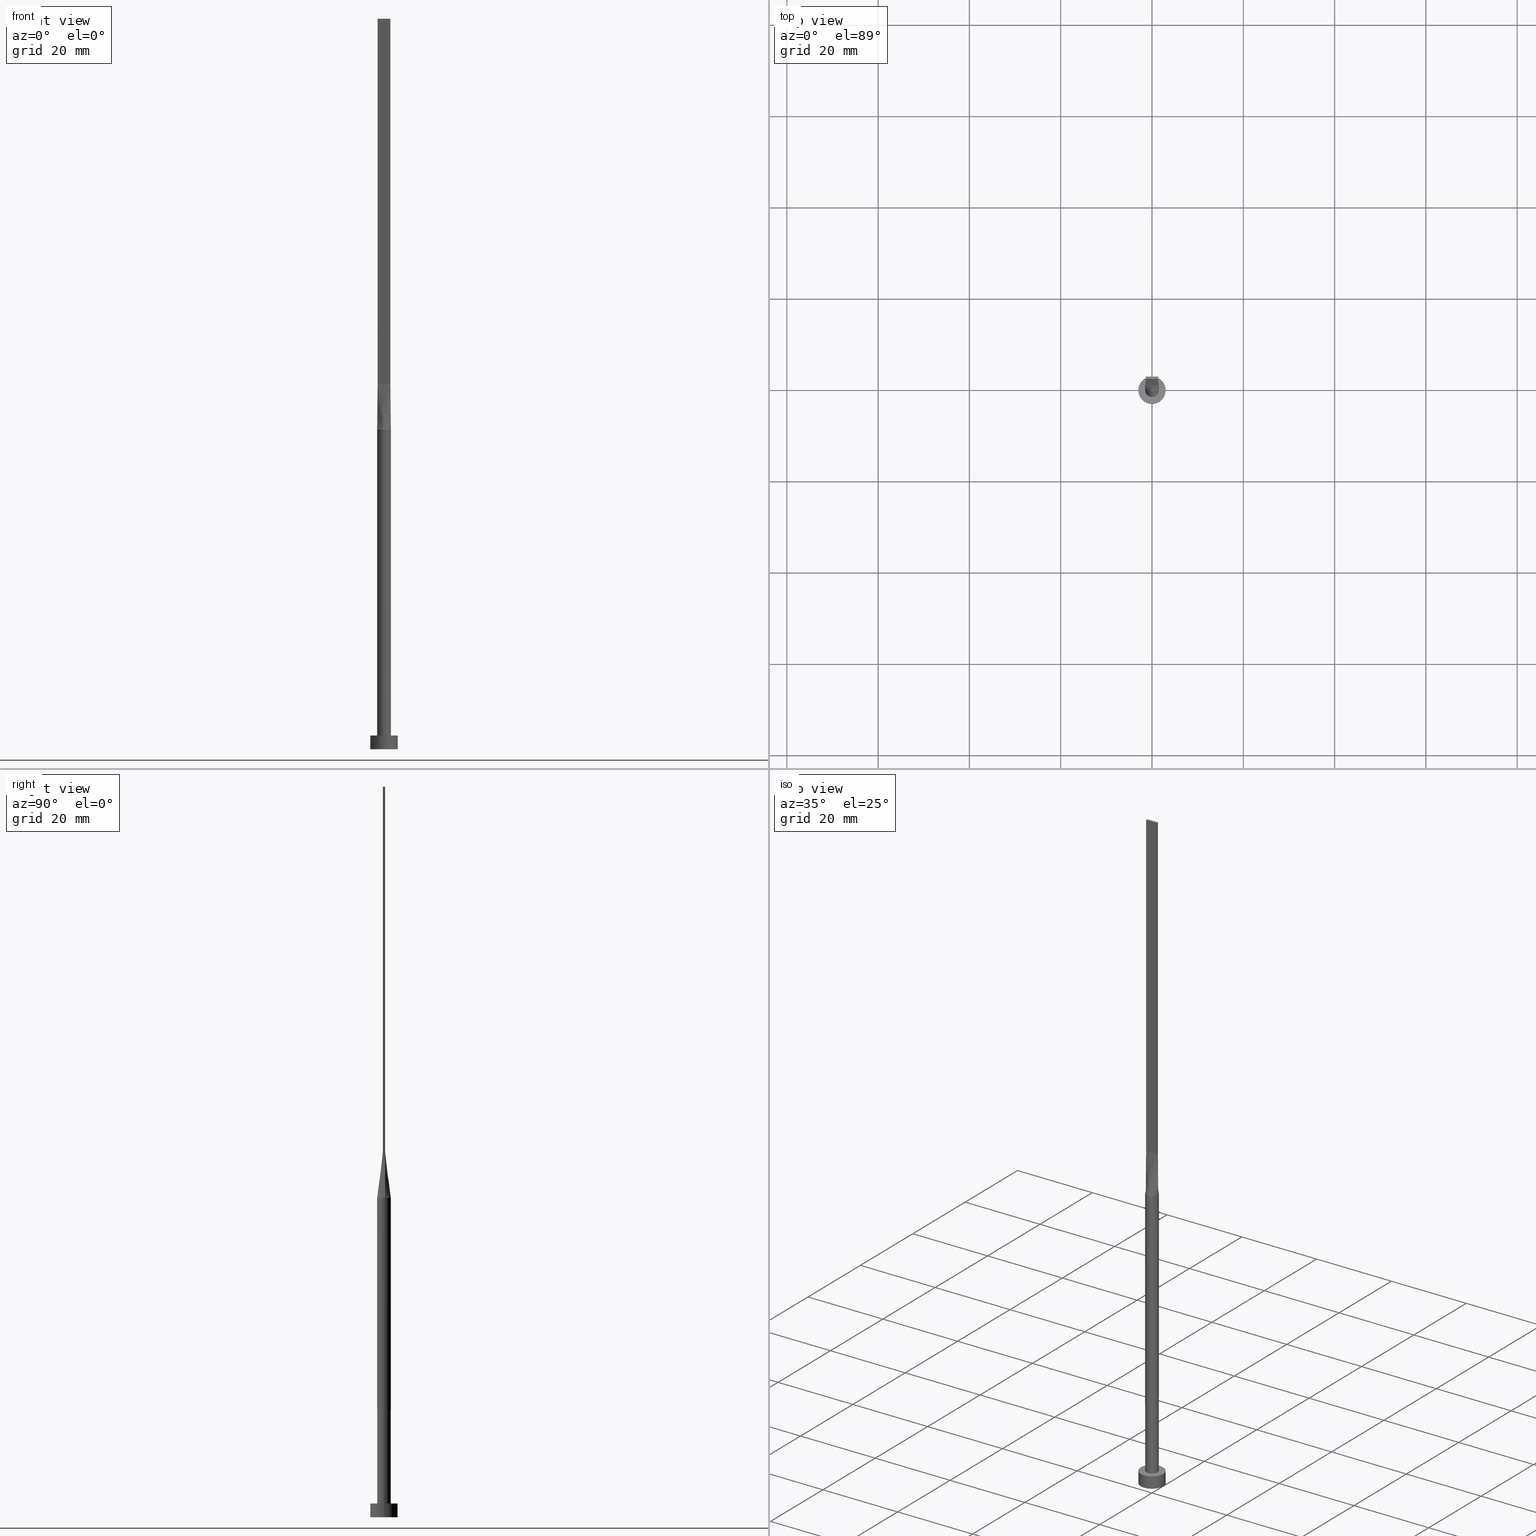
[diagram: canonical four-view strip — front | top / right | iso, engineering-drawing reading convention]
A machine part, canonical four-view strip (front | top / right | iso — engineering-drawing reading convention). The complete STEP part file that produces these views, byte-faithful:
ISO-10303-21;
HEADER;
FILE_DESCRIPTION (( 'STEP AP203' ),
    '1' );
FILE_NAME ('3741.STEP',
    '2026-02-12T09:00:59',
    ( '' ),
    ( '' ),
    'SwSTEP 2.0',
    'SolidWorks 2019',
    '' );
FILE_SCHEMA (( 'CONFIG_CONTROL_DESIGN' ));
ENDSEC;

DATA;
#1 = ORIENTED_EDGE ( 'NONE', *, *, #429, .T. ) ;
#2 = LINE ( 'NONE', #188, #316 ) ;
#3 = CIRCLE ( 'NONE', #363, 1.500000000000000222 ) ;
#4 = AXIS2_PLACEMENT_3D ( 'NONE', #34, #219, #395 ) ;
#5 = SECURITY_CLASSIFICATION ( '', '', #355 ) ;
#6 = DATE_AND_TIME ( #453, #443 ) ;
#7 = ADVANCED_FACE ( 'NONE', ( #457 ), #102, .F. ) ;
#8 = CARTESIAN_POINT ( 'NONE',  ( 1.399999999999999911, 0.1666666666666668239, 79.99999999999998579 ) ) ;
#9 = PLANE ( 'NONE',  #536 ) ;
#10 = CARTESIAN_POINT ( 'NONE',  ( -1.166666666666666519, 0.2500000000000002220, 79.99999999999998579 ) ) ;
#11 = VECTOR ( 'NONE', #522, 999.9999999999998863 ) ;
#12 = CARTESIAN_POINT ( 'NONE',  ( -1.499909062348296462, -1.026848616785427865E-15, 70.00000000000000000 ) ) ;
#13 = CC_DESIGN_PERSON_AND_ORGANIZATION_ASSIGNMENT ( #362, #497, ( #90 ) ) ;
#14 = ORIENTED_EDGE ( 'NONE', *, *, #112, .F. ) ;
#15 = LINE ( 'NONE', #237, #391 ) ;
#16 = CARTESIAN_POINT ( 'NONE',  ( 1.399999999999999911, -0.2499999999999997780, 160.0000000000000000 ) ) ;
#17 = CARTESIAN_POINT ( 'NONE',  ( 0.000000000000000000, 0.000000000000000000, 70.00000000000000000 ) ) ;
#18 = DIRECTION ( 'NONE',  ( 1.000000000000000000, 0.000000000000000000, 0.000000000000000000 ) ) ;
#19 = EDGE_LOOP ( 'NONE', ( #464, #1 ) ) ;
#20 = EDGE_LOOP ( 'NONE', ( #111, #153 ) ) ;
#21 = CIRCLE ( 'NONE', #57, 3.000000000000000444 ) ;
#22 = CARTESIAN_POINT ( 'NONE',  ( 1.166666666666666519, -0.2499999999999997780, 79.99999999999998579 ) ) ;
#23 = CARTESIAN_POINT ( 'NONE',  ( 1.416287091352355976, 0.5163978007200227260, 70.00000000000001421 ) ) ;
#24 = DIRECTION ( 'NONE',  ( 0.000000000000000000, 0.000000000000000000, 1.000000000000000000 ) ) ;
#25 = PLANE ( 'NONE',  #233 ) ;
#26 = CARTESIAN_POINT ( 'NONE',  ( -1.476780214353118348, -0.2637106662004926605, 70.00000000000000000 ) ) ;
#27 = ORIENTED_EDGE ( 'NONE', *, *, #180, .T. ) ;
#28 = CARTESIAN_POINT ( 'NONE',  ( -1.476641363262723328, -0.2636859577254855869, 70.00000000000000000 ) ) ;
#29 = DIRECTION ( 'NONE',  ( -1.000000000000000000, 0.000000000000000000, 0.000000000000000000 ) ) ;
#30 = CARTESIAN_POINT ( 'NONE',  ( 0.000000000000000000, 0.000000000000000000, 70.00000000000000000 ) ) ;
#31 = VECTOR ( 'NONE', #431, 999.9999999999998863 ) ;
#32 = CARTESIAN_POINT ( 'NONE',  ( -0.9436169880431074519, -1.179536671679307647, 70.00000000000000000 ) ) ;
#33 = ORIENTED_EDGE ( 'NONE', *, *, #120, .F. ) ;
#34 = CARTESIAN_POINT ( 'NONE',  ( 0.000000000000000000, 0.000000000000000000, 70.00000000000000000 ) ) ;
#35 = DIRECTION ( 'NONE',  ( 1.000000000000000000, 0.000000000000000000, 0.000000000000000000 ) ) ;
#36 = ORIENTED_EDGE ( 'NONE', *, *, #158, .F. ) ;
#37 = CARTESIAN_POINT ( 'NONE',  ( -1.476774769252511055, 0.2637095436881764510, 70.00000000000000000 ) ) ;
#38 = CARTESIAN_POINT ( 'NONE',  ( 0.000000000000000000, 0.000000000000000000, 3.000000000000000000 ) ) ;
#39 = APPROVAL_DATE_TIME ( #268, #389 ) ;
#40 = B_SPLINE_SURFACE_WITH_KNOTS ( 'NONE', 3, 1, ( 
 ( #341, #175 ),
 ( #259, #207 ),
 ( #71, #427 ),
 ( #558, #161 ),
 ( #306, #256 ),
 ( #28, #520 ) ),
 .UNSPECIFIED., .F., .F., .F.,
 ( 4, 2, 4 ),
 ( 2, 2 ),
 ( 0.000000000000000000, 0.5000000000000000000, 1.000000000000000000 ),
 ( 0.000000000000000000, 1.000000000000000000 ),
 .UNSPECIFIED. ) ;
#41 = VECTOR ( 'NONE', #455, 1000.000000000000000 ) ;
#42 = DIRECTION ( 'NONE',  ( -1.000000000000000000, 0.000000000000000000, 0.000000000000000000 ) ) ;
#43 = PERSON_AND_ORGANIZATION ( #89, #145 ) ;
#44 = CARTESIAN_POINT ( 'NONE',  ( -1.399999999999999911, 0.2500000000000002220, 160.0000000000000000 ) ) ;
#45 = ORIENTED_EDGE ( 'NONE', *, *, #85, .F. ) ;
#46 = CARTESIAN_POINT ( 'NONE',  ( -1.399999999999999911, -0.2499999999999996392, 160.0000000000000000 ) ) ;
#47 = CALENDAR_DATE ( 2026, 12, 2 ) ;
#48 = CARTESIAN_POINT ( 'NONE',  ( 0.000000000000000000, 0.000000000000000000, 70.00000000000000000 ) ) ;
#49 = PERSON_AND_ORGANIZATION ( #89, #145 ) ;
#50 = VERTEX_POINT ( 'NONE', #291 ) ;
#51 = EDGE_CURVE ( 'NONE', #377, #63, #60, .T. ) ;
#52 = CARTESIAN_POINT ( 'NONE',  ( 1.399999999999999911, -0.2499999999999997780, 80.00000000000000000 ) ) ;
#53 = DIRECTION ( 'NONE',  ( 0.000000000000000000, 0.000000000000000000, 1.000000000000000000 ) ) ;
#54 = CC_DESIGN_PERSON_AND_ORGANIZATION_ASSIGNMENT ( #96, #366, ( #90 ) ) ;
#55 = EDGE_CURVE ( 'NONE', #327, #50, #97, .T. ) ;
#56 = CARTESIAN_POINT ( 'NONE',  ( -1.399999999999999911, 0.2500000000000002220, 160.0000000000000000 ) ) ;
#57 = AXIS2_PLACEMENT_3D ( 'NONE', #441, #364, #493 ) ;
#58 = ORIENTED_EDGE ( 'NONE', *, *, #470, .F. ) ;
#59 = CARTESIAN_POINT ( 'NONE',  ( -0.4666666666666662300, 0.2500000000000002220, 79.99999999999998579 ) ) ;
#60 = LINE ( 'NONE', #244, #489 ) ;
#61 = ORIENTED_EDGE ( 'NONE', *, *, #186, .F. ) ;
#62 = DIRECTION ( 'NONE',  ( -0.000000000000000000, -0.000000000000000000, -1.000000000000000000 ) ) ;
#63 = VERTEX_POINT ( 'NONE', #412 ) ;
#64 = DIRECTION ( 'NONE',  ( 1.000000000000000000, 0.000000000000000000, 0.000000000000000000 ) ) ;
#65 = ORIENTED_EDGE ( 'NONE', *, *, #289, .T. ) ;
#66 = CC_DESIGN_APPROVAL ( #389, ( #90 ) ) ;
#67 = EDGE_CURVE ( 'NONE', #460, #50, #294, .T. ) ;
#68 = CARTESIAN_POINT ( 'NONE',  ( 0.4666666666666656194, -0.2499999999999996669, 79.99999999999998579 ) ) ;
#69 = CARTESIAN_POINT ( 'NONE',  ( 3.000000000000000444, 3.673940397442060361E-16, 3.000000000000000000 ) ) ;
#70 = ORIENTED_EDGE ( 'NONE', *, *, #367, .F. ) ;
#71 = CARTESIAN_POINT ( 'NONE',  ( -1.499818124696592481, 0.08857969085285440081, 70.00000000000000000 ) ) ;
#72 = DIRECTION ( 'NONE',  ( 0.000000000000000000, 0.000000000000000000, 1.000000000000000000 ) ) ;
#73 = CARTESIAN_POINT ( 'NONE',  ( -0.4178861784692550208, 1.454504042781961326, 70.00000000000001421 ) ) ;
#74 = CARTESIAN_POINT ( 'NONE',  ( 1.399999999999999911, -0.2499999999999997780, 80.00000000000000000 ) ) ;
#75 = CARTESIAN_POINT ( 'NONE',  ( -1.416287091352355976, 0.5163978007200225040, 70.00000000000001421 ) ) ;
#76 = AXIS2_PLACEMENT_3D ( 'NONE', #48, #234, #372 ) ;
#77 = CARTESIAN_POINT ( 'NONE',  ( -1.399999999999999911, 0.2500000000000002220, 80.00000000000000000 ) ) ;
#78 = ORIENTED_EDGE ( 'NONE', *, *, #487, .T. ) ;
#79 = CARTESIAN_POINT ( 'NONE',  ( -1.193588737715979731, -0.9257784320005619794, 70.00000000000000000 ) ) ;
#80 = CARTESIAN_POINT ( 'NONE',  ( 0.9333333333333329040, -0.2499999999999997224, 79.99999999999998579 ) ) ;
#81 = B_SPLINE_SURFACE_WITH_KNOTS ( 'NONE', 3, 1, ( 
 ( #356, #402 ),
 ( #531, #312 ),
 ( #93, #271 ),
 ( #581, #231 ),
 ( #183, #84 ),
 ( #403, #266 ),
 ( #226, #401 ),
 ( #358, #181 ),
 ( #533, #135 ),
 ( #314, #488 ),
 ( #88, #279 ),
 ( #329, #59 ),
 ( #369, #411 ),
 ( #368, #539 ),
 ( #285, #195 ),
 ( #506, #10 ),
 ( #456, #192 ),
 ( #151, #376 ) ),
 .UNSPECIFIED., .F., .F., .F.,
 ( 4, 2, 2, 2, 2, 2, 2, 2, 4 ),
 ( 2, 2 ),
 ( 0.000000000000000000, 0.1249999999999999167, 0.2499999999999998335, 0.3749999999999998335, 0.4999999999999998890, 0.6249999999999998890, 0.7499999999999998890, 0.8750000000000000000, 1.000000000000000000 ),
 ( 0.000000000000000000, 1.000000000000000000 ),
 .UNSPECIFIED. ) ;
#82 = CALENDAR_DATE ( 2026, 12, 2 ) ;
#83 = VERTEX_POINT ( 'NONE', #163 ) ;
#84 = CARTESIAN_POINT ( 'NONE',  ( 0.8166666666666673180, 0.2500000000000002220, 79.99999999999998579 ) ) ;
#85 = EDGE_CURVE ( 'NONE', #335, #63, #205, .T. ) ;
#86 = SHAPE_DEFINITION_REPRESENTATION ( #479, #277 ) ;
#87 = VECTOR ( 'NONE', #62, 1000.000000000000000 ) ;
#88 = CARTESIAN_POINT ( 'NONE',  ( -0.4178861784692550208, 1.454504042781961326, 70.00000000000001421 ) ) ;
#89 = PERSON ( 'NEUR�EN�', 'NEUR�EN�', 'NEUR�EN�', ('NEUR�EN�'), ('NEUR�EN�'), ('NEUR�EN�') ) ;
#90 = PRODUCT_DEFINITION_FORMATION_WITH_SPECIFIED_SOURCE ( 'LIBOVOLN�', '', #311, .NOT_KNOWN. ) ;
#91 = ORIENTED_EDGE ( 'NONE', *, *, #169, .F. ) ;
#92 = APPROVAL_DATE_TIME ( #6, #407 ) ;
#93 = CARTESIAN_POINT ( 'NONE',  ( 1.416287091352355976, 0.5163978007200227260, 70.00000000000001421 ) ) ;
#94 = PERSON_AND_ORGANIZATION_ROLE ( 'classification_officer' ) ;
#95 = CARTESIAN_POINT ( 'NONE',  ( 1.399999999999999911, 0.08333333333333346749, 79.99999999999998579 ) ) ;
#96 = PERSON_AND_ORGANIZATION ( #89, #145 ) ;
#97 = CIRCLE ( 'NONE', #238, 3.000000000000000444 ) ;
#98 = CARTESIAN_POINT ( 'NONE',  ( 1.500000000000000222, 1.836970198721030181E-16, 70.00000000000000000 ) ) ;
#99 = EDGE_CURVE ( 'NONE', #383, #557, #281, .T. ) ;
#100 = CARTESIAN_POINT ( 'NONE',  ( 0.000000000000000000, 0.000000000000000000, 0.000000000000000000 ) ) ;
#101 = FACE_OUTER_BOUND ( 'NONE', #410, .T. ) ;
#102 = PLANE ( 'NONE',  #380 ) ;
#103 = EDGE_LOOP ( 'NONE', ( #274, #150, #568, #267 ) ) ;
#104 = UNCERTAINTY_MEASURE_WITH_UNIT (LENGTH_MEASURE( 1.000000000000000082E-05 ), #162, 'distance_accuracy_value', 'NONE');
#105 = CARTESIAN_POINT ( 'NONE',  ( 1.399999999999999911, -0.08333333333333318993, 79.99999999999998579 ) ) ;
#106 = CIRCLE ( 'NONE', #144, 1.500000000000000222 ) ;
#107 = ORIENTED_EDGE ( 'NONE', *, *, #398, .F. ) ;
#108 = LINE ( 'NONE', #69, #154 ) ;
#109 = CARTESIAN_POINT ( 'NONE',  ( -1.500000000000000222, 0.000000000000000000, 70.00000000000000000 ) ) ;
#110 = EDGE_LOOP ( 'NONE', ( #350, #360, #278, #548 ) ) ;
#111 = ORIENTED_EDGE ( 'NONE', *, *, #180, .F. ) ;
#112 = EDGE_CURVE ( 'NONE', #445, #471, #424, .T. ) ;
#113 = DIRECTION ( 'NONE',  ( 0.000000000000000000, 0.000000000000000000, 1.000000000000000000 ) ) ;
#114 = DIRECTION ( 'NONE',  ( -0.000000000000000000, -0.000000000000000000, -1.000000000000000000 ) ) ;
#115 = VERTEX_POINT ( 'NONE', #12 ) ;
#116 = CIRCLE ( 'NONE', #248, 1.500000000000000222 ) ;
#117 = EDGE_CURVE ( 'NONE', #63, #185, #340, .T. ) ;
#118 = CARTESIAN_POINT ( 'NONE',  ( -0.1166666666666678343, -0.2499999999999996669, 80.00000000000000000 ) ) ;
#119 = PERSON_AND_ORGANIZATION ( #89, #145 ) ;
#120 = EDGE_CURVE ( 'NONE', #115, #557, #334, .T. ) ;
#121 = CARTESIAN_POINT ( 'NONE',  ( -0.9436169880431073409, 1.179536671679307647, 70.00000000000001421 ) ) ;
#122 = EDGE_CURVE ( 'NONE', #505, #335, #512, .T. ) ;
#123 = CARTESIAN_POINT ( 'NONE',  ( 0.2093118330951404815, -1.500000000000000444, 70.00000000000000000 ) ) ;
#124 = CARTESIAN_POINT ( 'NONE',  ( 0.000000000000000000, 0.000000000000000000, 3.000000000000000000 ) ) ;
#125 = CARTESIAN_POINT ( 'NONE',  ( 1.438320681631361619, 0.2568429788627433208, 75.00000000000001421 ) ) ;
#126 = ORIENTED_EDGE ( 'NONE', *, *, #486, .F. ) ;
#127 = CARTESIAN_POINT ( 'NONE',  ( 0.000000000000000000, 0.000000000000000000, 3.000000000000000000 ) ) ;
#128 = VECTOR ( 'NONE', #114, 1000.000000000000000 ) ;
#129 = LOCAL_TIME ( 10, 0, 59.00000000000000000, #449 ) ;
#130 = CARTESIAN_POINT ( 'NONE',  ( -0.5833333333333343695, -0.2499999999999996669, 79.99999999999998579 ) ) ;
#131 = EDGE_LOOP ( 'NONE', ( #436, #78, #218, #33, #91, #36 ) ) ;
#132 = CARTESIAN_POINT ( 'NONE',  ( -1.455009719257779111, 0.3848231641531745795, 70.00000000000000000 ) ) ;
#133 = DIRECTION ( 'NONE',  ( -0.000000000000000000, 1.000000000000000000, -0.000000000000000000 ) ) ;
#134 = CALENDAR_DATE ( 2026, 12, 2 ) ;
#135 = CARTESIAN_POINT ( 'NONE',  ( 0.1166666666666669461, 0.2500000000000002220, 79.99999999999998579 ) ) ;
#136 = APPROVAL_STATUS ( 'not_yet_approved' ) ;
#137 = VECTOR ( 'NONE', #246, 999.9999999999998863 ) ;
#138 = CARTESIAN_POINT ( 'NONE',  ( 1.476765312825354837, 0.2637079867918904474, 70.00000000000000000 ) ) ;
#139 = CC_DESIGN_PERSON_AND_ORGANIZATION_ASSIGNMENT ( #119, #562, ( #311 ) ) ;
#140 = COORDINATED_UNIVERSAL_TIME_OFFSET ( 1, 0, .AHEAD. ) ;
#141 = DIRECTION ( 'NONE',  ( -0.000000000000000000, -0.000000000000000000, -1.000000000000000000 ) ) ;
#142 = APPROVAL_STATUS ( 'not_yet_approved' ) ;
#143 = CARTESIAN_POINT ( 'NONE',  ( 1.492092537551969578, 0.1771593817057089126, 70.00000000000000000 ) ) ;
#144 = AXIS2_PLACEMENT_3D ( 'NONE', #17, #282, #503 ) ;
#145 = ORGANIZATION ( 'NEUR�EN�', 'NEUR�EN�', '' ) ;
#146 = DIRECTION ( 'NONE',  ( 1.000000000000000000, 0.000000000000000000, 0.000000000000000000 ) ) ;
#147 = ORIENTED_EDGE ( 'NONE', *, *, #295, .F. ) ;
#148 = CARTESIAN_POINT ( 'NONE',  ( 3.000000000000000444, 3.673940397442060361E-16, 3.000000000000000000 ) ) ;
#149 = DIRECTION ( 'NONE',  ( -0.000000000000000000, -0.000000000000000000, -1.000000000000000000 ) ) ;
#150 = ORIENTED_EDGE ( 'NONE', *, *, #486, .T. ) ;
#151 = CARTESIAN_POINT ( 'NONE',  ( -1.476641363262723328, 0.2636859577254856424, 70.00000000000000000 ) ) ;
#152 = CARTESIAN_POINT ( 'NONE',  ( 0.000000000000000000, 0.000000000000000000, 3.000000000000000000 ) ) ;
#153 = ORIENTED_EDGE ( 'NONE', *, *, #99, .F. ) ;
#154 = VECTOR ( 'NONE', #336, 1000.000000000000000 ) ;
#155 = APPROVAL_ROLE ( '' ) ;
#156 = CARTESIAN_POINT ( 'NONE',  ( -1.438320681631361619, -0.2568429788627425991, 75.00000000000001421 ) ) ;
#157 = ORIENTED_EDGE ( 'NONE', *, *, #51, .T. ) ;
#158 = EDGE_CURVE ( 'NONE', #365, #505, #254, .T. ) ;
#159 = CARTESIAN_POINT ( 'NONE',  ( 0.7852726932053988307, 1.293660568283136358, 70.00000000000001421 ) ) ;
#160 = EDGE_LOOP ( 'NONE', ( #318, #107, #413, #197 ) ) ;
#161 = CARTESIAN_POINT ( 'NONE',  ( -1.399999999999999911, -0.08333333333333345361, 79.99999999999998579 ) ) ;
#162 =( LENGTH_UNIT ( ) NAMED_UNIT ( * ) SI_UNIT ( .MILLI., .METRE. ) );
#163 = CARTESIAN_POINT ( 'NONE',  ( -1.399999999999999911, 0.2500000000000002220, 160.0000000000000000 ) ) ;
#164 = EDGE_LOOP ( 'NONE', ( #206, #14, #517, #157 ) ) ;
#165 = PLANE ( 'NONE',  #260 ) ;
#166 = DIRECTION ( 'NONE',  ( 1.000000000000000000, 0.000000000000000000, 0.000000000000000000 ) ) ;
#167 = AXIS2_PLACEMENT_3D ( 'NONE', #223, #535, #399 ) ;
#168 =( GEOMETRIC_REPRESENTATION_CONTEXT ( 3 ) GLOBAL_UNCERTAINTY_ASSIGNED_CONTEXT ( ( #104 ) ) GLOBAL_UNIT_ASSIGNED_CONTEXT ( ( #162, #204, #381 ) ) REPRESENTATION_CONTEXT ( 'NONE', 'WORKASPACE' ) );
#169 = EDGE_CURVE ( 'NONE', #505, #115, #409, .T. ) ;
#170 = CARTESIAN_POINT ( 'NONE',  ( 1.476641363262723106, -0.2636859577254864750, 70.00000000000000000 ) ) ;
#171 = FACE_OUTER_BOUND ( 'NONE', #272, .T. ) ;
#172 = LINE ( 'NONE', #573, #31 ) ;
#173 = ORIENTED_EDGE ( 'NONE', *, *, #169, .T. ) ;
#174 = CARTESIAN_POINT ( 'NONE',  ( -1.399999999999999911, -0.2499999999999996392, 80.00000000000000000 ) ) ;
#175 = CARTESIAN_POINT ( 'NONE',  ( -1.399999999999999911, 0.2500000000000002220, 80.00000000000000000 ) ) ;
#176 = LINE ( 'NONE', #397, #269 ) ;
#177 = CIRCLE ( 'NONE', #4, 1.500000000000000222 ) ;
#178 = FACE_OUTER_BOUND ( 'NONE', #330, .T. ) ;
#179 = VERTEX_POINT ( 'NONE', #258 ) ;
#180 = EDGE_CURVE ( 'NONE', #557, #383, #3, .T. ) ;
#181 = CARTESIAN_POINT ( 'NONE',  ( 0.2333333333333337534, 0.2500000000000002220, 79.99999999999998579 ) ) ;
#182 = ADVANCED_FACE ( 'NONE', ( #221 ), #570, .T. ) ;
#183 = CARTESIAN_POINT ( 'NONE',  ( 1.193588737715979509, 0.9257784320005622014, 70.00000000000000000 ) ) ;
#184 = CC_DESIGN_DATE_AND_TIME_ASSIGNMENT ( #225, #265, ( #5 ) ) ;
#185 = VERTEX_POINT ( 'NONE', #26 ) ;
#186 = EDGE_CURVE ( 'NONE', #115, #185, #466, .T. ) ;
#187 = AXIS2_PLACEMENT_3D ( 'NONE', #152, #379, #560 ) ;
#188 = CARTESIAN_POINT ( 'NONE',  ( 1.399999999999999911, 0.2500000000000002220, 160.0000000000000000 ) ) ;
#189 = CARTESIAN_POINT ( 'NONE',  ( 1.399999999999999911, -0.2499999999999997780, 80.00000000000000000 ) ) ;
#190 = MANIFOLD_SOLID_BREP ( 'P�idat vysunut�m5', #353 ) ;
#191 = CARTESIAN_POINT ( 'NONE',  ( 1.492092537551969356, -0.1771593817057092457, 70.00000000000000000 ) ) ;
#192 = CARTESIAN_POINT ( 'NONE',  ( -1.283333333333333437, 0.2500000000000002220, 79.99999999999998579 ) ) ;
#193 = ORIENTED_EDGE ( 'NONE', *, *, #541, .F. ) ;
#194 = ORIENTED_EDGE ( 'NONE', *, *, #120, .T. ) ;
#195 = CARTESIAN_POINT ( 'NONE',  ( -0.9333333333333331261, 0.2500000000000002220, 79.99999999999998579 ) ) ;
#196 = CARTESIAN_POINT ( 'NONE',  ( -3.000000000000000444, 0.000000000000000000, 3.000000000000000000 ) ) ;
#197 = ORIENTED_EDGE ( 'NONE', *, *, #541, .T. ) ;
#198 = ADVANCED_FACE ( 'NONE', ( #305 ), #261, .T. ) ;
#199 = CARTESIAN_POINT ( 'NONE',  ( 1.399999999999999911, 0.2500000000000002220, 80.00000000000000000 ) ) ;
#200 = ORIENTED_EDGE ( 'NONE', *, *, #117, .T. ) ;
#201 = EDGE_CURVE ( 'NONE', #63, #471, #176, .T. ) ;
#202 = ORIENTED_EDGE ( 'NONE', *, *, #367, .T. ) ;
#203 = VECTOR ( 'NONE', #444, 1000.000000000000000 ) ;
#204 =( NAMED_UNIT ( * ) PLANE_ANGLE_UNIT ( ) SI_UNIT ( $, .RADIAN. ) );
#205 = LINE ( 'NONE', #251, #331 ) ;
#206 = ORIENTED_EDGE ( 'NONE', *, *, #201, .T. ) ;
#207 = CARTESIAN_POINT ( 'NONE',  ( -1.399999999999999911, 0.1666666666666665741, 79.99999999999998579 ) ) ;
#208 = FACE_OUTER_BOUND ( 'NONE', #164, .T. ) ;
#209 = CARTESIAN_POINT ( 'NONE',  ( 1.476765312825354837, 0.2637079867918904474, 70.00000000000000000 ) ) ;
#210 = EDGE_CURVE ( 'NONE', #377, #445, #483, .T. ) ;
#211 = CARTESIAN_POINT ( 'NONE',  ( 3.000000000000000444, 3.673940397442060361E-16, 0.000000000000000000 ) ) ;
#212 = CARTESIAN_POINT ( 'NONE',  ( 0.000000000000000000, 0.000000000000000000, 0.000000000000000000 ) ) ;
#213 = DIRECTION ( 'NONE',  ( 1.000000000000000000, -5.808225924029488744E-17, 0.000000000000000000 ) ) ;
#214 = CARTESIAN_POINT ( 'NONE',  ( 1.285860877433234961, -0.7868275653575079742, 70.00000000000002842 ) ) ;
#215 = DIRECTION ( 'NONE',  ( 1.000000000000000000, 0.000000000000000000, 0.000000000000000000 ) ) ;
#216 = AXIS2_PLACEMENT_3D ( 'NONE', #528, #113, #308 ) ;
#217 = CARTESIAN_POINT ( 'NONE',  ( 0.8166666666666659857, -0.2499999999999996669, 79.99999999999998579 ) ) ;
#218 = ORIENTED_EDGE ( 'NONE', *, *, #99, .T. ) ;
#219 = DIRECTION ( 'NONE',  ( 0.000000000000000000, 0.000000000000000000, 1.000000000000000000 ) ) ;
#220 = CARTESIAN_POINT ( 'NONE',  ( 0.000000000000000000, 0.000000000000000000, 70.00000000000000000 ) ) ;
#221 = FACE_OUTER_BOUND ( 'NONE', #110, .T. ) ;
#222 = EDGE_CURVE ( 'NONE', #179, #365, #177, .T. ) ;
#223 = CARTESIAN_POINT ( 'NONE',  ( 0.000000000000000000, 0.000000000000000000, 3.000000000000000000 ) ) ;
#224 = B_SPLINE_SURFACE_WITH_KNOTS ( 'NONE', 3, 1, ( 
 ( #563, #174 ),
 ( #347, #526 ),
 ( #309, #344 ),
 ( #474, #303 ),
 ( #79, #521 ),
 ( #32, #130 ),
 ( #468, #252 ),
 ( #567, #264 ),
 ( #384, #118 ),
 ( #123, #484 ),
 ( #387, #476 ),
 ( #561, #68 ),
 ( #301, #304 ),
 ( #472, #217 ),
 ( #214, #80 ),
 ( #524, #22 ),
 ( #425, #394 ),
 ( #170, #74 ) ),
 .UNSPECIFIED., .F., .F., .F.,
 ( 4, 2, 2, 2, 2, 2, 2, 2, 4 ),
 ( 2, 2 ),
 ( 0.000000000000000000, 0.1250000000000000000, 0.2500000000000000000, 0.3750000000000000000, 0.5000000000000000000, 0.6250000000000000000, 0.7500000000000000000, 0.8750000000000000000, 1.000000000000000000 ),
 ( 0.000000000000000000, 1.000000000000000000 ),
 .UNSPECIFIED. ) ;
#225 = DATE_AND_TIME ( #47, #129 ) ;
#226 = CARTESIAN_POINT ( 'NONE',  ( 0.7852726932053988307, 1.293660568283136358, 70.00000000000001421 ) ) ;
#227 = DIRECTION ( 'NONE',  ( -0.000000000000000000, -0.000000000000000000, -1.000000000000000000 ) ) ;
#228 = ADVANCED_FACE ( 'NONE', ( #171 ), #224, .T. ) ;
#229 = ORIENTED_EDGE ( 'NONE', *, *, #487, .F. ) ;
#230 = COORDINATED_UNIVERSAL_TIME_OFFSET ( 1, 0, .AHEAD. ) ;
#231 = CARTESIAN_POINT ( 'NONE',  ( 0.9333333333333339032, 0.2500000000000002220, 79.99999999999998579 ) ) ;
#232 = PERSON_AND_ORGANIZATION ( #89, #145 ) ;
#233 = AXIS2_PLACEMENT_3D ( 'NONE', #469, #559, #299 ) ;
#234 = DIRECTION ( 'NONE',  ( -0.000000000000000000, -0.000000000000000000, -1.000000000000000000 ) ) ;
#235 = ADVANCED_FACE ( 'NONE', ( #437 ), #40, .T. ) ;
#236 = CARTESIAN_POINT ( 'NONE',  ( -1.476774769252511055, 0.2637095436881764510, 70.00000000000000000 ) ) ;
#237 = CARTESIAN_POINT ( 'NONE',  ( 1.399999999999999911, 0.2500000000000002220, 160.0000000000000000 ) ) ;
#238 = AXIS2_PLACEMENT_3D ( 'NONE', #415, #296, #18 ) ;
#239 = DIRECTION ( 'NONE',  ( 0.000000000000000000, -1.000000000000000000, 0.000000000000000000 ) ) ;
#240 = DIRECTION ( 'NONE',  ( -1.000000000000000000, 0.000000000000000000, 0.000000000000000000 ) ) ;
#241 = ORIENTED_EDGE ( 'NONE', *, *, #393, .T. ) ;
#242 = CC_DESIGN_PERSON_AND_ORGANIZATION_ASSIGNMENT ( #43, #94, ( #5 ) ) ;
#243 = CARTESIAN_POINT ( 'NONE',  ( 1.476789766994309527, -0.2637122300648489515, 70.00000000000000000 ) ) ;
#244 = CARTESIAN_POINT ( 'NONE',  ( -1.399999999999999911, -0.2499999999999996392, 160.0000000000000000 ) ) ;
#245 = ORIENTED_EDGE ( 'NONE', *, *, #117, .F. ) ;
#246 = DIRECTION ( 'NONE',  ( 0.007663904067361707387, -0.001368554297743073810, 0.9999696953576046043 ) ) ;
#247 = ORIENTED_EDGE ( 'NONE', *, *, #375, .F. ) ;
#248 = AXIS2_PLACEMENT_3D ( 'NONE', #220, #24, #35 ) ;
#249 = APPLICATION_PROTOCOL_DEFINITION ( 'international standard', 'config_control_design', 1994, #434 ) ;
#250 = PRODUCT_RELATED_PRODUCT_CATEGORY ( 'detail', '', ( #311 ) ) ;
#251 = CARTESIAN_POINT ( 'NONE',  ( -1.399999999999999911, 0.2500000000000002220, 80.00000000000000000 ) ) ;
#252 = CARTESIAN_POINT ( 'NONE',  ( -0.4666666666666677288, -0.2499999999999996669, 79.99999999999998579 ) ) ;
#253 = CARTESIAN_POINT ( 'NONE',  ( -1.500000000000000222, 0.000000000000000000, 3.000000000000000000 ) ) ;
#254 = B_SPLINE_CURVE_WITH_KNOTS ( 'NONE', 3,
 ( #209, #418, #23, #382, #386, #556, #159, #337, #547, #326, #73, #354, #121, #478, #263, #75, #132, #37 ),
 .UNSPECIFIED., .F., .F.,
 ( 4, 2, 2, 2, 2, 2, 2, 2, 4 ),
 ( 0.000000000000000000, 0.1249999999999999167, 0.2499999999999998335, 0.3749999999999998335, 0.4999999999999998890, 0.6249999999999998890, 0.7499999999999998890, 0.8750000000000000000, 1.000000000000000000 ),
 .UNSPECIFIED. ) ;
#255 = ORIENTED_EDGE ( 'NONE', *, *, #273, .F. ) ;
#256 = CARTESIAN_POINT ( 'NONE',  ( -1.399999999999999911, -0.1666666666666665741, 79.99999999999998579 ) ) ;
#257 = APPROVAL_STATUS ( 'not_yet_approved' ) ;
#258 = CARTESIAN_POINT ( 'NONE',  ( 1.499909062348296462, 3.515891419768138559E-16, 70.00000000000000000 ) ) ;
#259 = CARTESIAN_POINT ( 'NONE',  ( -1.492092537551969578, 0.1771593817057086351, 70.00000000000000000 ) ) ;
#260 = AXIS2_PLACEMENT_3D ( 'NONE', #390, #565, #352 ) ;
#261 = PLANE ( 'NONE',  #421 ) ;
#262 = PLANE ( 'NONE',  #216 ) ;
#263 = CARTESIAN_POINT ( 'NONE',  ( -1.285860877433235183, 0.7868275653575075301, 70.00000000000001421 ) ) ;
#264 = CARTESIAN_POINT ( 'NONE',  ( -0.2333333333333344750, -0.2499999999999996669, 79.99999999999998579 ) ) ;
#265 = DATE_TIME_ROLE ( 'classification_date' ) ;
#266 = CARTESIAN_POINT ( 'NONE',  ( 0.5833333333333339255, 0.2500000000000002220, 79.99999999999998579 ) ) ;
#267 = ORIENTED_EDGE ( 'NONE', *, *, #420, .T. ) ;
#268 = DATE_AND_TIME ( #134, #422 ) ;
#269 = VECTOR ( 'NONE', #426, 1000.000000000000000 ) ;
#270 = CC_DESIGN_SECURITY_CLASSIFICATION ( #5, ( #90 ) ) ;
#271 = CARTESIAN_POINT ( 'NONE',  ( 1.166666666666666963, 0.2500000000000002220, 80.00000000000000000 ) ) ;
#272 = EDGE_LOOP ( 'NONE', ( #525, #495, #419, #200 ) ) ;
#273 = EDGE_CURVE ( 'NONE', #501, #471, #172, .T. ) ;
#274 = ORIENTED_EDGE ( 'NONE', *, *, #470, .T. ) ;
#275 = DATE_AND_TIME ( #82, #323 ) ;
#276 = FACE_OUTER_BOUND ( 'NONE', #160, .T. ) ;
#277 = ADVANCED_BREP_SHAPE_REPRESENTATION ( '3741', ( #190, #371 ), #168 ) ;
#278 = ORIENTED_EDGE ( 'NONE', *, *, #55, .T. ) ;
#279 = CARTESIAN_POINT ( 'NONE',  ( -0.2333333333333329485, 0.2500000000000002220, 79.99999999999998579 ) ) ;
#280 = ORIENTED_EDGE ( 'NONE', *, *, #222, .T. ) ;
#281 = CIRCLE ( 'NONE', #187, 1.500000000000000222 ) ;
#282 = DIRECTION ( 'NONE',  ( 0.000000000000000000, 0.000000000000000000, 1.000000000000000000 ) ) ;
#283 = ORIENTED_EDGE ( 'NONE', *, *, #289, .F. ) ;
#284 = CARTESIAN_POINT ( 'NONE',  ( 1.476641363262723106, -0.2636859577254868081, 70.00000000000000000 ) ) ;
#285 = CARTESIAN_POINT ( 'NONE',  ( -1.285860877433235183, 0.7868275653575075301, 70.00000000000001421 ) ) ;
#286 = DIRECTION ( 'NONE',  ( 0.000000000000000000, 0.000000000000000000, 1.000000000000000000 ) ) ;
#287 = ORIENTED_EDGE ( 'NONE', *, *, #345, .T. ) ;
#288 = AXIS2_PLACEMENT_3D ( 'NONE', #127, #435, #351 ) ;
#289 = EDGE_CURVE ( 'NONE', #553, #335, #338, .T. ) ;
#290 = LINE ( 'NONE', #56, #41 ) ;
#291 = CARTESIAN_POINT ( 'NONE',  ( -3.000000000000000444, 0.000000000000000000, 0.000000000000000000 ) ) ;
#292 = EDGE_LOOP ( 'NONE', ( #310, #280, #287, #70, #255 ) ) ;
#293 = APPROVAL_DATE_TIME ( #423, #508 ) ;
#294 = LINE ( 'NONE', #196, #128 ) ;
#295 = EDGE_CURVE ( 'NONE', #185, #501, #116, .T. ) ;
#296 = DIRECTION ( 'NONE',  ( 0.000000000000000000, 0.000000000000000000, 1.000000000000000000 ) ) ;
#297 = FACE_OUTER_BOUND ( 'NONE', #438, .T. ) ;
#298 = AXIS2_PLACEMENT_3D ( 'NONE', #324, #554, #146 ) ;
#299 = DIRECTION ( 'NONE',  ( -1.000000000000000000, 5.808225924029488744E-17, 0.000000000000000000 ) ) ;
#300 = ORIENTED_EDGE ( 'NONE', *, *, #55, .F. ) ;
#301 = CARTESIAN_POINT ( 'NONE',  ( 0.9436169880431068968, -1.179536671679308535, 70.00000000000001421 ) ) ;
#302 = PERSON_AND_ORGANIZATION ( #89, #145 ) ;
#303 = CARTESIAN_POINT ( 'NONE',  ( -0.9333333333333340143, -0.2499999999999996669, 79.99999999999998579 ) ) ;
#304 = CARTESIAN_POINT ( 'NONE',  ( 0.5833333333333323711, -0.2499999999999996669, 79.99999999999998579 ) ) ;
#305 = FACE_OUTER_BOUND ( 'NONE', #103, .T. ) ;
#306 = CARTESIAN_POINT ( 'NONE',  ( -1.492092537551969578, -0.1771593817057082465, 70.00000000000000000 ) ) ;
#307 = CARTESIAN_POINT ( 'NONE',  ( 0.000000000000000000, 0.000000000000000000, 160.0000000000000000 ) ) ;
#308 = DIRECTION ( 'NONE',  ( 1.000000000000000000, 0.000000000000000000, -0.000000000000000000 ) ) ;
#309 = CARTESIAN_POINT ( 'NONE',  ( -1.416287091352355532, -0.5163978007200222820, 70.00000000000001421 ) ) ;
#310 = ORIENTED_EDGE ( 'NONE', *, *, #494, .T. ) ;
#311 = PRODUCT ( '3741', '3741', '', ( #385 ) ) ;
#312 = CARTESIAN_POINT ( 'NONE',  ( 1.283333333333333659, 0.2500000000000002220, 80.00000000000000000 ) ) ;
#313 = ORIENTED_EDGE ( 'NONE', *, *, #112, .T. ) ;
#314 = CARTESIAN_POINT ( 'NONE',  ( -0.2093118330951410921, 1.500000000000000222, 70.00000000000001421 ) ) ;
#315 = COORDINATED_UNIVERSAL_TIME_OFFSET ( 1, 0, .AHEAD. ) ;
#316 = VECTOR ( 'NONE', #227, 1000.000000000000000 ) ;
#317 = CARTESIAN_POINT ( 'NONE',  ( 1.399999999999999911, 0.2500000000000002220, 80.00000000000000000 ) ) ;
#318 = ORIENTED_EDGE ( 'NONE', *, *, #552, .F. ) ;
#319 = CARTESIAN_POINT ( 'NONE',  ( 1.500000000000000222, 1.836970198721030181E-16, 3.000000000000000000 ) ) ;
#320 = PLANE ( 'NONE',  #370 ) ;
#321 = DATE_TIME_ROLE ( 'creation_date' ) ;
#322 = CARTESIAN_POINT ( 'NONE',  ( 1.499818124696592481, 0.08857969085285435917, 70.00000000000000000 ) ) ;
#323 = LOCAL_TIME ( 10, 0, 59.00000000000000000, #140 ) ;
#324 = CARTESIAN_POINT ( 'NONE',  ( 0.000000000000000000, 0.000000000000000000, 0.000000000000000000 ) ) ;
#325 = CYLINDRICAL_SURFACE ( 'NONE', #76, 1.500000000000000222 ) ;
#326 = CARTESIAN_POINT ( 'NONE',  ( -0.2093118330951410921, 1.500000000000000222, 70.00000000000001421 ) ) ;
#327 = VERTEX_POINT ( 'NONE', #211 ) ;
#328 = ADVANCED_FACE ( 'NONE', ( #297 ), #165, .F. ) ;
#329 = CARTESIAN_POINT ( 'NONE',  ( -0.7852726932053990527, 1.293660568283136136, 70.00000000000001421 ) ) ;
#330 = EDGE_LOOP ( 'NONE', ( #432, #359, #283, #571 ) ) ;
#331 = VECTOR ( 'NONE', #465, 1000.000000000000000 ) ;
#332 = ORIENTED_EDGE ( 'NONE', *, *, #494, .F. ) ;
#333 = COORDINATED_UNIVERSAL_TIME_OFFSET ( 1, 0, .AHEAD. ) ;
#334 = LINE ( 'NONE', #109, #87 ) ;
#335 = VERTEX_POINT ( 'NONE', #516 ) ;
#336 = DIRECTION ( 'NONE',  ( -0.000000000000000000, -0.000000000000000000, -1.000000000000000000 ) ) ;
#337 = CARTESIAN_POINT ( 'NONE',  ( 0.4178861784692547432, 1.454504042781961770, 70.00000000000004263 ) ) ;
#338 = LINE ( 'NONE', #77, #451 ) ;
#339 = DIRECTION ( 'NONE',  ( -0.000000000000000000, -0.000000000000000000, -1.000000000000000000 ) ) ;
#340 = LINE ( 'NONE', #156, #458 ) ;
#341 = CARTESIAN_POINT ( 'NONE',  ( -1.476641363262723328, 0.2636859577254859754, 70.00000000000000000 ) ) ;
#342 = VECTOR ( 'NONE', #440, 1000.000000000000000 ) ;
#343 = FACE_OUTER_BOUND ( 'NONE', #416, .T. ) ;
#344 = CARTESIAN_POINT ( 'NONE',  ( -1.166666666666666963, -0.2499999999999996669, 79.99999999999998579 ) ) ;
#345 = EDGE_CURVE ( 'NONE', #365, #553, #346, .T. ) ;
#346 = LINE ( 'NONE', #125, #11 ) ;
#347 = CARTESIAN_POINT ( 'NONE',  ( -1.455009719257779111, -0.3848231641531742464, 70.00000000000001421 ) ) ;
#348 = ADVANCED_FACE ( 'NONE', ( #396, #481 ), #262, .T. ) ;
#349 = DIRECTION ( 'NONE',  ( -1.000000000000000000, -0.000000000000000000, -0.000000000000000000 ) ) ;
#350 = ORIENTED_EDGE ( 'NONE', *, *, #429, .F. ) ;
#351 = DIRECTION ( 'NONE',  ( -1.000000000000000000, 0.000000000000000000, 0.000000000000000000 ) ) ;
#352 = DIRECTION ( 'NONE',  ( -0.000000000000000000, 0.000000000000000000, -1.000000000000000000 ) ) ;
#353 = CLOSED_SHELL ( 'NONE', ( #463, #182, #374, #348, #546, #572, #228, #475, #235, #448, #534, #328, #578, #7, #198 ) ) ;
#354 = CARTESIAN_POINT ( 'NONE',  ( -0.7852726932053990527, 1.293660568283136136, 70.00000000000001421 ) ) ;
#355 = SECURITY_CLASSIFICATION_LEVEL ( 'unclassified' ) ;
#356 = CARTESIAN_POINT ( 'NONE',  ( 1.476641363262723328, 0.2636859577254862530, 70.00000000000000000 ) ) ;
#357 = PERSON_AND_ORGANIZATION ( #89, #145 ) ;
#358 = CARTESIAN_POINT ( 'NONE',  ( 0.4178861784692547432, 1.454504042781961770, 70.00000000000004263 ) ) ;
#359 = ORIENTED_EDGE ( 'NONE', *, *, #122, .T. ) ;
#360 = ORIENTED_EDGE ( 'NONE', *, *, #552, .T. ) ;
#361 = LINE ( 'NONE', #44, #203 ) ;
#362 = PERSON_AND_ORGANIZATION ( #89, #145 ) ;
#363 = AXIS2_PLACEMENT_3D ( 'NONE', #124, #530, #215 ) ;
#364 = DIRECTION ( 'NONE',  ( 0.000000000000000000, 0.000000000000000000, 1.000000000000000000 ) ) ;
#365 = VERTEX_POINT ( 'NONE', #138 ) ;
#366 = PERSON_AND_ORGANIZATION_ROLE ( 'design_supplier' ) ;
#367 = EDGE_CURVE ( 'NONE', #471, #553, #538, .T. ) ;
#368 = CARTESIAN_POINT ( 'NONE',  ( -1.193588737715979731, 0.9257784320005616463, 70.00000000000000000 ) ) ;
#369 = CARTESIAN_POINT ( 'NONE',  ( -0.9436169880431073409, 1.179536671679307647, 70.00000000000001421 ) ) ;
#370 = AXIS2_PLACEMENT_3D ( 'NONE', #100, #53, #545 ) ;
#371 = AXIS2_PLACEMENT_3D ( 'NONE', #212, #72, #64 ) ;
#372 = DIRECTION ( 'NONE',  ( -1.000000000000000000, 0.000000000000000000, 0.000000000000000000 ) ) ;
#373 = CARTESIAN_POINT ( 'NONE',  ( -1.438320681631361619, 0.2568429788627429322, 75.00000000000001421 ) ) ;
#374 = ADVANCED_FACE ( 'NONE', ( #276 ), #447, .T. ) ;
#375 = EDGE_CURVE ( 'NONE', #83, #335, #361, .T. ) ;
#376 = CARTESIAN_POINT ( 'NONE',  ( -1.399999999999999911, 0.2500000000000002220, 80.00000000000000000 ) ) ;
#377 = VERTEX_POINT ( 'NONE', #46 ) ;
#378 = LINE ( 'NONE', #98, #433 ) ;
#379 = DIRECTION ( 'NONE',  ( 0.000000000000000000, 0.000000000000000000, 1.000000000000000000 ) ) ;
#380 = AXIS2_PLACEMENT_3D ( 'NONE', #16, #240, #286 ) ;
#381 =( NAMED_UNIT ( * ) SI_UNIT ( $, .STERADIAN. ) SOLID_ANGLE_UNIT ( ) );
#382 = CARTESIAN_POINT ( 'NONE',  ( 1.285860877433235405, 0.7868275653575075301, 70.00000000000000000 ) ) ;
#383 = VERTEX_POINT ( 'NONE', #319 ) ;
#384 = CARTESIAN_POINT ( 'NONE',  ( -0.2093118330951414807, -1.500000000000000666, 70.00000000000000000 ) ) ;
#385 = MECHANICAL_CONTEXT ( 'NONE', #434, 'mechanical' ) ;
#386 = CARTESIAN_POINT ( 'NONE',  ( 1.193588737715979509, 0.9257784320005622014, 70.00000000000000000 ) ) ;
#387 = CARTESIAN_POINT ( 'NONE',  ( 0.4178861784692542991, -1.454504042781961548, 70.00000000000002842 ) ) ;
#388 = DIRECTION ( 'NONE',  ( 0.000000000000000000, 0.000000000000000000, 1.000000000000000000 ) ) ;
#389 = APPROVAL ( #142, 'NEUR�EN�' ) ;
#390 = CARTESIAN_POINT ( 'NONE',  ( -1.399999999999999911, 0.2500000000000002220, 160.0000000000000000 ) ) ;
#391 = VECTOR ( 'NONE', #406, 1000.000000000000000 ) ;
#392 = DIRECTION ( 'NONE',  ( 0.000000000000000000, 0.000000000000000000, 1.000000000000000000 ) ) ;
#393 = EDGE_CURVE ( 'NONE', #518, #553, #2, .T. ) ;
#394 = CARTESIAN_POINT ( 'NONE',  ( 1.283333333333333437, -0.2499999999999997780, 79.99999999999998579 ) ) ;
#395 = DIRECTION ( 'NONE',  ( 1.000000000000000000, 0.000000000000000000, 0.000000000000000000 ) ) ;
#396 = FACE_BOUND ( 'NONE', #20, .T. ) ;
#397 = CARTESIAN_POINT ( 'NONE',  ( -1.399999999999999911, -0.2499999999999996392, 80.00000000000000000 ) ) ;
#398 = EDGE_CURVE ( 'NONE', #460, #551, #21, .T. ) ;
#399 = DIRECTION ( 'NONE',  ( 1.000000000000000000, 0.000000000000000000, 0.000000000000000000 ) ) ;
#400 = B_SPLINE_SURFACE_WITH_KNOTS ( 'NONE', 3, 1, ( 
 ( #284, #52 ),
 ( #191, #405 ),
 ( #408, #105 ),
 ( #322, #95 ),
 ( #143, #8 ),
 ( #499, #199 ) ),
 .UNSPECIFIED., .F., .F., .F.,
 ( 4, 2, 4 ),
 ( 2, 2 ),
 ( 0.000000000000000000, 0.5000000000000000000, 1.000000000000000000 ),
 ( 0.000000000000000000, 1.000000000000000000 ),
 .UNSPECIFIED. ) ;
#401 = CARTESIAN_POINT ( 'NONE',  ( 0.4666666666666673402, 0.2500000000000002220, 79.99999999999998579 ) ) ;
#402 = CARTESIAN_POINT ( 'NONE',  ( 1.399999999999999911, 0.2500000000000002220, 80.00000000000000000 ) ) ;
#403 = CARTESIAN_POINT ( 'NONE',  ( 0.9436169880431070078, 1.179536671679307869, 70.00000000000001421 ) ) ;
#404 = CIRCLE ( 'NONE', #298, 3.000000000000000444 ) ;
#405 = CARTESIAN_POINT ( 'NONE',  ( 1.399999999999999911, -0.1666666666666664909, 79.99999999999998579 ) ) ;
#406 = DIRECTION ( 'NONE',  ( -1.000000000000000000, 0.000000000000000000, 0.000000000000000000 ) ) ;
#407 = APPROVAL ( #136, 'NEUR�EN�' ) ;
#408 = CARTESIAN_POINT ( 'NONE',  ( 1.499818124696592481, -0.08857969085285472000, 70.00000000000000000 ) ) ;
#409 = CIRCLE ( 'NONE', #500, 1.500000000000000222 ) ;
#410 = EDGE_LOOP ( 'NONE', ( #65, #247, #58, #241 ) ) ;
#411 = CARTESIAN_POINT ( 'NONE',  ( -0.5833333333333328152, 0.2500000000000002220, 79.99999999999998579 ) ) ;
#412 = CARTESIAN_POINT ( 'NONE',  ( -1.399999999999999911, -0.2499999999999996392, 80.00000000000000000 ) ) ;
#413 = ORIENTED_EDGE ( 'NONE', *, *, #67, .T. ) ;
#414 = DIRECTION ( 'NONE',  ( 0.000000000000000000, -0.000000000000000000, -1.000000000000000000 ) ) ;
#415 = CARTESIAN_POINT ( 'NONE',  ( 0.000000000000000000, 0.000000000000000000, 0.000000000000000000 ) ) ;
#416 = EDGE_LOOP ( 'NONE', ( #229, #332, #147, #61, #194, #27 ) ) ;
#417 = CARTESIAN_POINT ( 'NONE',  ( 1.399999999999999911, 0.2500000000000002220, 80.00000000000000000 ) ) ;
#418 = CARTESIAN_POINT ( 'NONE',  ( 1.455009719257779111, 0.3848231641531748570, 70.00000000000001421 ) ) ;
#419 = ORIENTED_EDGE ( 'NONE', *, *, #201, .F. ) ;
#420 = EDGE_CURVE ( 'NONE', #445, #518, #579, .T. ) ;
#421 = AXIS2_PLACEMENT_3D ( 'NONE', #307, #388, #430 ) ;
#422 = LOCAL_TIME ( 10, 0, 59.00000000000000000, #230 ) ;
#423 = DATE_AND_TIME ( #511, #577 ) ;
#424 = LINE ( 'NONE', #555, #509 ) ;
#425 = CARTESIAN_POINT ( 'NONE',  ( 1.455009719257778888, -0.3848231641531754121, 70.00000000000001421 ) ) ;
#426 = DIRECTION ( 'NONE',  ( 1.000000000000000000, -5.808225924029488744E-17, 0.000000000000000000 ) ) ;
#427 = CARTESIAN_POINT ( 'NONE',  ( -1.399999999999999911, 0.08333333333333312054, 79.99999999999998579 ) ) ;
#428 = CYLINDRICAL_SURFACE ( 'NONE', #480, 1.500000000000000222 ) ;
#429 = EDGE_CURVE ( 'NONE', #551, #460, #527, .T. ) ;
#430 = DIRECTION ( 'NONE',  ( 1.000000000000000000, 0.000000000000000000, -0.000000000000000000 ) ) ;
#431 = DIRECTION ( 'NONE',  ( -0.007663904067361685703, 0.001368554297743198494, 0.9999696953576046043 ) ) ;
#432 = ORIENTED_EDGE ( 'NONE', *, *, #158, .T. ) ;
#433 = VECTOR ( 'NONE', #459, 1000.000000000000000 ) ;
#434 = APPLICATION_CONTEXT ( 'configuration controlled 3d designs of mechanical parts and assemblies' ) ;
#435 = DIRECTION ( 'NONE',  ( -0.000000000000000000, -0.000000000000000000, -1.000000000000000000 ) ) ;
#436 = ORIENTED_EDGE ( 'NONE', *, *, #222, .F. ) ;
#437 = FACE_OUTER_BOUND ( 'NONE', #477, .T. ) ;
#438 = EDGE_LOOP ( 'NONE', ( #504, #513, #126, #452 ) ) ;
#439 = CARTESIAN_POINT ( 'NONE',  ( 0.000000000000000000, 0.000000000000000000, 70.00000000000000000 ) ) ;
#440 = DIRECTION ( 'NONE',  ( 0.000000000000000000, 1.000000000000000000, 0.000000000000000000 ) ) ;
#441 = CARTESIAN_POINT ( 'NONE',  ( 0.000000000000000000, 0.000000000000000000, 3.000000000000000000 ) ) ;
#442 = ORIENTED_EDGE ( 'NONE', *, *, #122, .F. ) ;
#443 = LOCAL_TIME ( 10, 0, 59.00000000000000000, #315 ) ;
#444 = DIRECTION ( 'NONE',  ( -0.000000000000000000, -0.000000000000000000, -1.000000000000000000 ) ) ;
#445 = VERTEX_POINT ( 'NONE', #576 ) ;
#446 = APPROVAL_ROLE ( '' ) ;
#447 = CYLINDRICAL_SURFACE ( 'NONE', #564, 3.000000000000000444 ) ;
#448 = ADVANCED_FACE ( 'NONE', ( #178 ), #81, .T. ) ;
#449 = COORDINATED_UNIVERSAL_TIME_OFFSET ( 1, 0, .AHEAD. ) ;
#450 = CARTESIAN_POINT ( 'NONE',  ( -3.000000000000000444, 0.000000000000000000, 3.000000000000000000 ) ) ;
#451 = VECTOR ( 'NONE', #349, 1000.000000000000000 ) ;
#452 = ORIENTED_EDGE ( 'NONE', *, *, #375, .T. ) ;
#453 = CALENDAR_DATE ( 2026, 12, 2 ) ;
#454 = CARTESIAN_POINT ( 'NONE',  ( 1.399999999999999911, 0.2500000000000002220, 160.0000000000000000 ) ) ;
#455 = DIRECTION ( 'NONE',  ( 0.000000000000000000, -1.000000000000000000, 0.000000000000000000 ) ) ;
#456 = CARTESIAN_POINT ( 'NONE',  ( -1.455009719257779111, 0.3848231641531745795, 70.00000000000000000 ) ) ;
#457 = FACE_OUTER_BOUND ( 'NONE', #510, .T. ) ;
#458 = VECTOR ( 'NONE', #462, 999.9999999999998863 ) ;
#459 = DIRECTION ( 'NONE',  ( -0.000000000000000000, -0.000000000000000000, -1.000000000000000000 ) ) ;
#460 = VERTEX_POINT ( 'NONE', #450 ) ;
#461 = APPLICATION_CONTEXT ( 'configuration controlled 3d designs of mechanical parts and assemblies' ) ;
#462 = DIRECTION ( 'NONE',  ( -0.007663904067361707387, -0.001368554297743128020, -0.9999696953576046043 ) ) ;
#463 = ADVANCED_FACE ( 'NONE', ( #496 ), #325, .T. ) ;
#464 = ORIENTED_EDGE ( 'NONE', *, *, #398, .T. ) ;
#465 = DIRECTION ( 'NONE',  ( 0.000000000000000000, -1.000000000000000000, 0.000000000000000000 ) ) ;
#466 = CIRCLE ( 'NONE', #519, 1.500000000000000222 ) ;
#467 = CC_DESIGN_APPROVAL ( #508, ( #491 ) ) ;
#468 = CARTESIAN_POINT ( 'NONE',  ( -0.7852726932053994968, -1.293660568283136136, 70.00000000000001421 ) ) ;
#469 = CARTESIAN_POINT ( 'NONE',  ( -1.399999999999999911, -0.2499999999999996392, 160.0000000000000000 ) ) ;
#470 = EDGE_CURVE ( 'NONE', #518, #83, #15, .T. ) ;
#471 = VERTEX_POINT ( 'NONE', #189 ) ;
#472 = CARTESIAN_POINT ( 'NONE',  ( 1.193588737715979509, -0.9257784320005624235, 70.00000000000000000 ) ) ;
#473 = CARTESIAN_POINT ( 'NONE',  ( 0.000000000000000000, 0.000000000000000000, 70.00000000000000000 ) ) ;
#474 = CARTESIAN_POINT ( 'NONE',  ( -1.285860877433235405, -0.7868275653575071971, 70.00000000000001421 ) ) ;
#475 = ADVANCED_FACE ( 'NONE', ( #550 ), #400, .T. ) ;
#476 = CARTESIAN_POINT ( 'NONE',  ( 0.2333333333333322268, -0.2499999999999996669, 79.99999999999998579 ) ) ;
#477 = EDGE_LOOP ( 'NONE', ( #173, #529, #245, #45, #442 ) ) ;
#478 = CARTESIAN_POINT ( 'NONE',  ( -1.193588737715979731, 0.9257784320005616463, 70.00000000000000000 ) ) ;
#479 = PRODUCT_DEFINITION_SHAPE ( 'NONE', 'NONE',  #491 ) ;
#480 = AXIS2_PLACEMENT_3D ( 'NONE', #473, #339, #29 ) ;
#481 = FACE_OUTER_BOUND ( 'NONE', #19, .T. ) ;
#482 = APPROVAL_PERSON_ORGANIZATION ( #302, #508, #155 ) ;
#483 = LINE ( 'NONE', #574, #543 ) ;
#484 = CARTESIAN_POINT ( 'NONE',  ( 0.1166666666666655305, -0.2499999999999996669, 79.99999999999998579 ) ) ;
#485 = CARTESIAN_POINT ( 'NONE',  ( 1.399999999999999911, -0.2499999999999997780, 160.0000000000000000 ) ) ;
#486 = EDGE_CURVE ( 'NONE', #83, #377, #290, .T. ) ;
#487 = EDGE_CURVE ( 'NONE', #179, #383, #378, .T. ) ;
#488 = CARTESIAN_POINT ( 'NONE',  ( -0.1166666666666663910, 0.2500000000000002220, 79.99999999999998579 ) ) ;
#489 = VECTOR ( 'NONE', #507, 1000.000000000000000 ) ;
#490 = CC_DESIGN_APPROVAL ( #407, ( #5 ) ) ;
#491 = PRODUCT_DEFINITION ( 'NEZN�M�', '', #90, #540 ) ;
#492 = PERSON_AND_ORGANIZATION_ROLE ( 'creator' ) ;
#493 = DIRECTION ( 'NONE',  ( 1.000000000000000000, 0.000000000000000000, 0.000000000000000000 ) ) ;
#494 = EDGE_CURVE ( 'NONE', #501, #179, #106, .T. ) ;
#495 = ORIENTED_EDGE ( 'NONE', *, *, #273, .T. ) ;
#496 = FACE_OUTER_BOUND ( 'NONE', #131, .T. ) ;
#497 = PERSON_AND_ORGANIZATION_ROLE ( 'creator' ) ;
#498 = CC_DESIGN_PERSON_AND_ORGANIZATION_ASSIGNMENT ( #49, #492, ( #491 ) ) ;
#499 = CARTESIAN_POINT ( 'NONE',  ( 1.476641363262723328, 0.2636859577254864750, 70.00000000000000000 ) ) ;
#500 = AXIS2_PLACEMENT_3D ( 'NONE', #439, #523, #166 ) ;
#501 = VERTEX_POINT ( 'NONE', #243 ) ;
#502 = FACE_OUTER_BOUND ( 'NONE', #580, .T. ) ;
#503 = DIRECTION ( 'NONE',  ( 1.000000000000000000, -7.105427357601001859E-15, 0.000000000000000000 ) ) ;
#504 = ORIENTED_EDGE ( 'NONE', *, *, #85, .T. ) ;
#505 = VERTEX_POINT ( 'NONE', #236 ) ;
#506 = CARTESIAN_POINT ( 'NONE',  ( -1.416287091352355976, 0.5163978007200225040, 70.00000000000001421 ) ) ;
#507 = DIRECTION ( 'NONE',  ( -0.000000000000000000, -0.000000000000000000, -1.000000000000000000 ) ) ;
#508 = APPROVAL ( #257, 'NEUR�EN�' ) ;
#509 = VECTOR ( 'NONE', #149, 1000.000000000000000 ) ;
#510 = EDGE_LOOP ( 'NONE', ( #202, #515, #549, #313 ) ) ;
#511 = CALENDAR_DATE ( 2026, 12, 2 ) ;
#512 = LINE ( 'NONE', #373, #137 ) ;
#513 = ORIENTED_EDGE ( 'NONE', *, *, #51, .F. ) ;
#514 = APPLICATION_PROTOCOL_DEFINITION ( 'international standard', 'config_control_design', 1994, #461 ) ;
#515 = ORIENTED_EDGE ( 'NONE', *, *, #393, .F. ) ;
#516 = CARTESIAN_POINT ( 'NONE',  ( -1.399999999999999911, 0.2500000000000002220, 80.00000000000000000 ) ) ;
#517 = ORIENTED_EDGE ( 'NONE', *, *, #210, .F. ) ;
#518 = VERTEX_POINT ( 'NONE', #454 ) ;
#519 = AXIS2_PLACEMENT_3D ( 'NONE', #30, #392, #566 ) ;
#520 = CARTESIAN_POINT ( 'NONE',  ( -1.399999999999999911, -0.2499999999999995837, 80.00000000000000000 ) ) ;
#521 = CARTESIAN_POINT ( 'NONE',  ( -0.8166666666666674290, -0.2499999999999996669, 79.99999999999998579 ) ) ;
#522 = DIRECTION ( 'NONE',  ( -0.007663904067361707387, -0.001368554297743154909, 0.9999696953576046043 ) ) ;
#523 = DIRECTION ( 'NONE',  ( 0.000000000000000000, 0.000000000000000000, 1.000000000000000000 ) ) ;
#524 = CARTESIAN_POINT ( 'NONE',  ( 1.416287091352355532, -0.5163978007200231701, 70.00000000000001421 ) ) ;
#525 = ORIENTED_EDGE ( 'NONE', *, *, #295, .T. ) ;
#526 = CARTESIAN_POINT ( 'NONE',  ( -1.283333333333333437, -0.2499999999999996669, 79.99999999999998579 ) ) ;
#527 = CIRCLE ( 'NONE', #167, 3.000000000000000444 ) ;
#528 = CARTESIAN_POINT ( 'NONE',  ( 0.000000000000000000, 0.000000000000000000, 3.000000000000000000 ) ) ;
#529 = ORIENTED_EDGE ( 'NONE', *, *, #186, .T. ) ;
#530 = DIRECTION ( 'NONE',  ( 0.000000000000000000, 0.000000000000000000, 1.000000000000000000 ) ) ;
#531 = CARTESIAN_POINT ( 'NONE',  ( 1.455009719257779111, 0.3848231641531748570, 70.00000000000001421 ) ) ;
#532 = APPROVAL_ROLE ( '' ) ;
#533 = CARTESIAN_POINT ( 'NONE',  ( 0.2093118330951408979, 1.500000000000000666, 70.00000000000000000 ) ) ;
#534 = ADVANCED_FACE ( 'NONE', ( #101 ), #9, .F. ) ;
#535 = DIRECTION ( 'NONE',  ( 0.000000000000000000, 0.000000000000000000, 1.000000000000000000 ) ) ;
#536 = AXIS2_PLACEMENT_3D ( 'NONE', #542, #239, #414 ) ;
#537 = APPROVAL_PERSON_ORGANIZATION ( #232, #407, #446 ) ;
#538 = LINE ( 'NONE', #317, #575 ) ;
#539 = CARTESIAN_POINT ( 'NONE',  ( -0.8166666666666664298, 0.2500000000000002220, 79.99999999999998579 ) ) ;
#540 = DESIGN_CONTEXT ( 'detailed design', #461, 'design' ) ;
#541 = EDGE_CURVE ( 'NONE', #50, #327, #404, .T. ) ;
#542 = CARTESIAN_POINT ( 'NONE',  ( 1.399999999999999911, 0.2500000000000002220, 160.0000000000000000 ) ) ;
#543 = VECTOR ( 'NONE', #213, 1000.000000000000000 ) ;
#544 = APPROVAL_PERSON_ORGANIZATION ( #357, #389, #532 ) ;
#545 = DIRECTION ( 'NONE',  ( 1.000000000000000000, 0.000000000000000000, -0.000000000000000000 ) ) ;
#546 = ADVANCED_FACE ( 'NONE', ( #502 ), #320, .F. ) ;
#547 = CARTESIAN_POINT ( 'NONE',  ( 0.2093118330951408979, 1.500000000000000666, 70.00000000000000000 ) ) ;
#548 = ORIENTED_EDGE ( 'NONE', *, *, #67, .F. ) ;
#549 = ORIENTED_EDGE ( 'NONE', *, *, #420, .F. ) ;
#550 = FACE_OUTER_BOUND ( 'NONE', #292, .T. ) ;
#551 = VERTEX_POINT ( 'NONE', #148 ) ;
#552 = EDGE_CURVE ( 'NONE', #551, #327, #108, .T. ) ;
#553 = VERTEX_POINT ( 'NONE', #417 ) ;
#554 = DIRECTION ( 'NONE',  ( 0.000000000000000000, 0.000000000000000000, 1.000000000000000000 ) ) ;
#555 = CARTESIAN_POINT ( 'NONE',  ( 1.399999999999999911, -0.2499999999999997780, 160.0000000000000000 ) ) ;
#556 = CARTESIAN_POINT ( 'NONE',  ( 0.9436169880431070078, 1.179536671679307869, 70.00000000000001421 ) ) ;
#557 = VERTEX_POINT ( 'NONE', #253 ) ;
#558 = CARTESIAN_POINT ( 'NONE',  ( -1.499818124696592481, -0.08857969085285403998, 70.00000000000000000 ) ) ;
#559 = DIRECTION ( 'NONE',  ( 5.808225924029488744E-17, 1.000000000000000000, -0.000000000000000000 ) ) ;
#560 = DIRECTION ( 'NONE',  ( 1.000000000000000000, 0.000000000000000000, 0.000000000000000000 ) ) ;
#561 = CARTESIAN_POINT ( 'NONE',  ( 0.7852726932053983866, -1.293660568283137247, 70.00000000000001421 ) ) ;
#562 = PERSON_AND_ORGANIZATION_ROLE ( 'design_owner' ) ;
#563 = CARTESIAN_POINT ( 'NONE',  ( -1.476641363262723328, -0.2636859577254855869, 70.00000000000000000 ) ) ;
#564 = AXIS2_PLACEMENT_3D ( 'NONE', #38, #141, #42 ) ;
#565 = DIRECTION ( 'NONE',  ( 1.000000000000000000, 0.000000000000000000, -0.000000000000000000 ) ) ;
#566 = DIRECTION ( 'NONE',  ( 1.000000000000000000, 0.000000000000000000, 0.000000000000000000 ) ) ;
#567 = CARTESIAN_POINT ( 'NONE',  ( -0.4178861784692555759, -1.454504042781961548, 70.00000000000001421 ) ) ;
#568 = ORIENTED_EDGE ( 'NONE', *, *, #210, .T. ) ;
#569 = CC_DESIGN_DATE_AND_TIME_ASSIGNMENT ( #275, #321, ( #491 ) ) ;
#570 = CYLINDRICAL_SURFACE ( 'NONE', #288, 3.000000000000000444 ) ;
#571 = ORIENTED_EDGE ( 'NONE', *, *, #345, .F. ) ;
#572 = ADVANCED_FACE ( 'NONE', ( #343 ), #428, .T. ) ;
#573 = CARTESIAN_POINT ( 'NONE',  ( 1.438320681631361397, -0.2568429788627430987, 75.00000000000001421 ) ) ;
#574 = CARTESIAN_POINT ( 'NONE',  ( -1.399999999999999911, -0.2499999999999996392, 160.0000000000000000 ) ) ;
#575 = VECTOR ( 'NONE', #133, 1000.000000000000000 ) ;
#576 = CARTESIAN_POINT ( 'NONE',  ( 1.399999999999999911, -0.2499999999999997780, 160.0000000000000000 ) ) ;
#577 = LOCAL_TIME ( 10, 0, 59.00000000000000000, #333 ) ;
#578 = ADVANCED_FACE ( 'NONE', ( #208 ), #25, .F. ) ;
#579 = LINE ( 'NONE', #485, #342 ) ;
#580 = EDGE_LOOP ( 'NONE', ( #193, #300 ) ) ;
#581 = CARTESIAN_POINT ( 'NONE',  ( 1.285860877433235405, 0.7868275653575075301, 70.00000000000000000 ) ) ;
ENDSEC;
END-ISO-10303-21;
